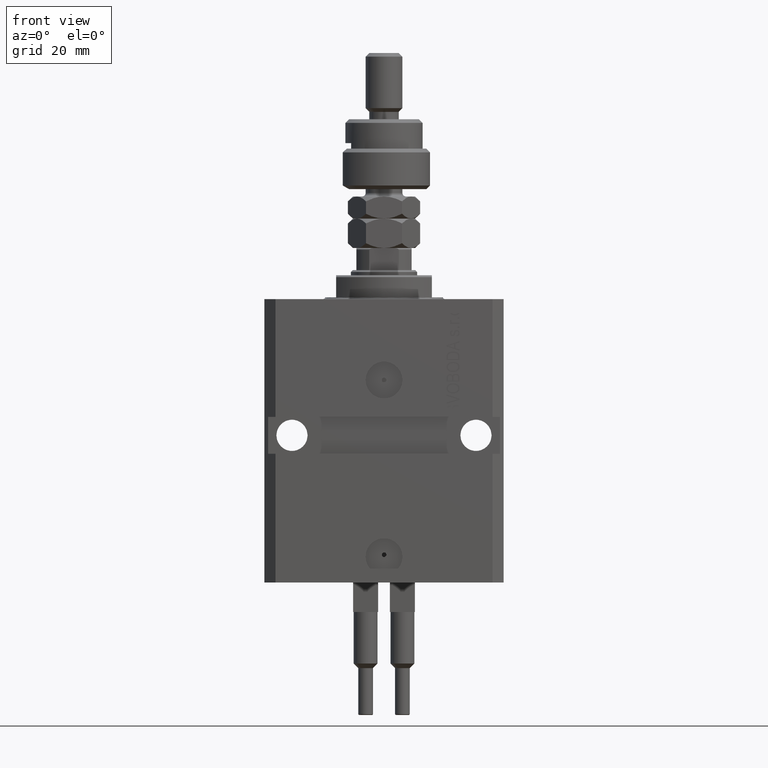
[diagram: clean part render]
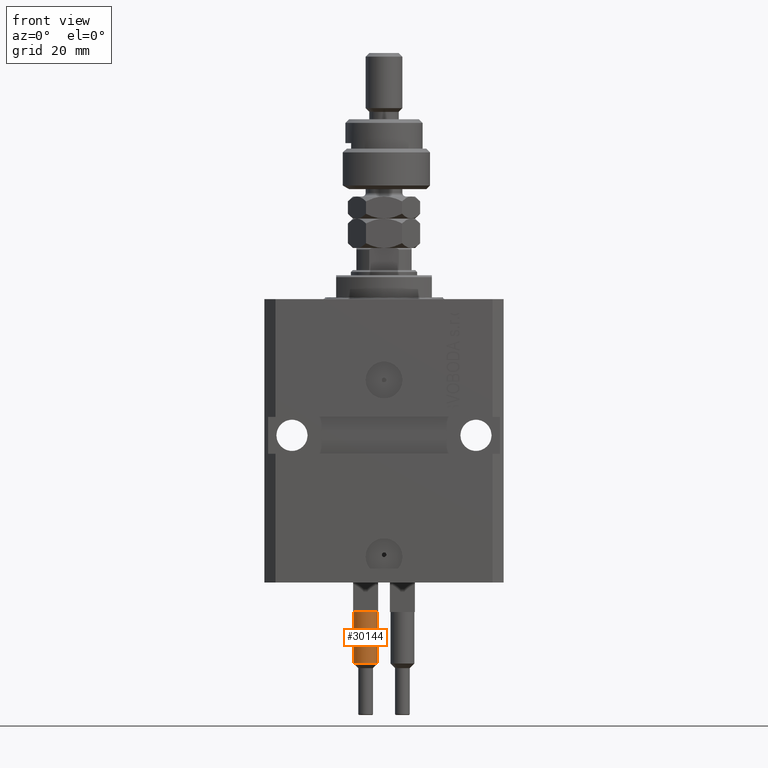
[diagram: same view with one face highlighted and labeled with its STEP entity id]
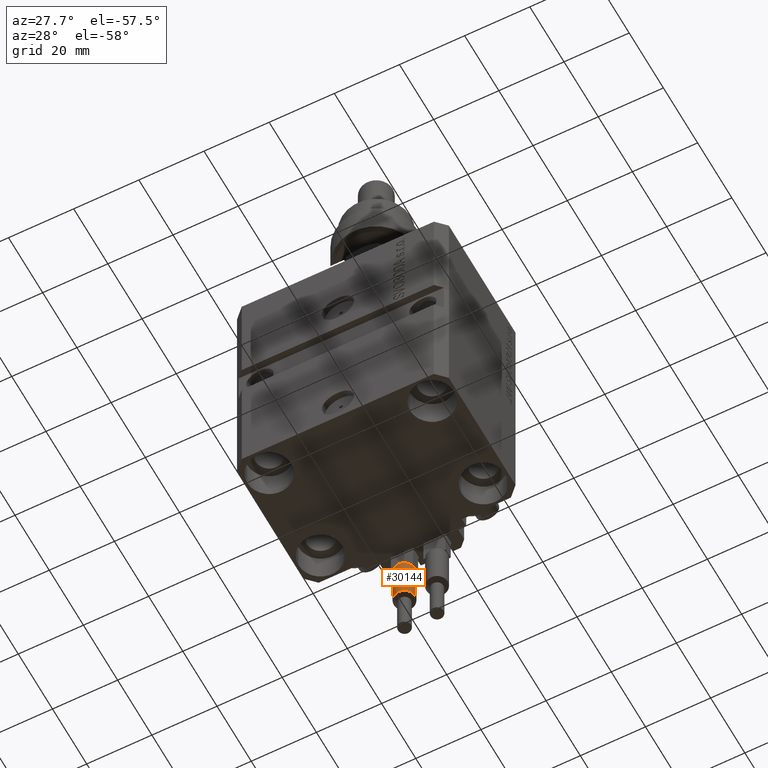
[diagram: same view with one face highlighted and labeled with its STEP entity id]
A machine part, front view. The second image highlights one B-rep face of the part: STEP entity #30144.
A second angle (auxiliary view) of the same face is appended — the face is thin or edge-on in the first view.
In plain terms, the highlighted cylindrical surface (edge-blend (fillet) strip) has radius 3.25 mm, axis along (0, 0, 1).
Its self-contained STEP definition (entity closure, byte-faithful):
#153 = VERTEX_POINT ( 'NONE', #41149 ) ;
#504 = DIRECTION ( 'NONE',  ( 0.000000000000000000, 0.000000000000000000, 1.000000000000000000 ) ) ;
#801 = CIRCLE ( 'NONE', #13122, 3.250000000000000444 ) ;
#1519 = ORIENTED_EDGE ( 'NONE', *, *, #21157, .T. ) ;
#2864 = LINE ( 'NONE', #22393, #3114 ) ;
#3007 = CARTESIAN_POINT ( 'NONE',  ( 3.250000000000000444, 3.980102097228898231E-16, 53.99999999999998579 ) ) ;
#3114 = VECTOR ( 'NONE', #10324, 1000.000000000000000 ) ;
#3421 = LINE ( 'NONE', #20288, #27524 ) ;
#3444 = ORIENTED_EDGE ( 'NONE', *, *, #9943, .T. ) ;
#4852 = CARTESIAN_POINT ( 'NONE',  ( 0.000000000000000000, 0.000000000000000000, 40.00000000000000000 ) ) ;
#7608 = EDGE_CURVE ( 'NONE', #153, #14983, #2864, .T. ) ;
#9463 = DIRECTION ( 'NONE',  ( 0.000000000000000000, 0.000000000000000000, 1.000000000000000000 ) ) ;
#9943 = EDGE_CURVE ( 'NONE', #47606, #19009, #48328, .T. ) ;
#10324 = DIRECTION ( 'NONE',  ( -0.000000000000000000, -0.000000000000000000, -1.000000000000000000 ) ) ;
#13122 = AXIS2_PLACEMENT_3D ( 'NONE', #4852, #504, #16690 ) ;
#13330 = AXIS2_PLACEMENT_3D ( 'NONE', #18126, #45608, #37136 ) ;
#14804 = CARTESIAN_POINT ( 'NONE',  ( -3.250000000000000444, 0.000000000000000000, 40.00000000000000000 ) ) ;
#14983 = VERTEX_POINT ( 'NONE', #14804 ) ;
#15037 = EDGE_CURVE ( 'NONE', #26687, #153, #16387, .T. ) ;
#15721 = CARTESIAN_POINT ( 'NONE',  ( 3.250000000000000444, 3.980102097228898231E-16, 40.00000000000000000 ) ) ;
#16387 = CIRCLE ( 'NONE', #41833, 3.250000000000000444 ) ;
#16451 = CARTESIAN_POINT ( 'NONE',  ( 0.000000000000000000, 0.000000000000000000, 40.00000000000000000 ) ) ;
#16577 = DIRECTION ( 'NONE',  ( 0.000000000000000000, 0.000000000000000000, -1.000000000000000000 ) ) ;
#16690 = DIRECTION ( 'NONE',  ( 1.000000000000000000, 0.000000000000000000, 0.000000000000000000 ) ) ;
#18126 = CARTESIAN_POINT ( 'NONE',  ( 0.000000000000000000, 0.000000000000000000, 56.00000000000000000 ) ) ;
#19009 = VERTEX_POINT ( 'NONE', #15721 ) ;
#20288 = CARTESIAN_POINT ( 'NONE',  ( 3.250000000000000444, 3.980102097228898231E-16, 56.00000000000000000 ) ) ;
#21157 = EDGE_CURVE ( 'NONE', #14983, #36182, #801, .T. ) ;
#21303 = DIRECTION ( 'NONE',  ( 0.000000000000000000, 0.000000000000000000, 1.000000000000000000 ) ) ;
#22393 = CARTESIAN_POINT ( 'NONE',  ( -3.250000000000000444, 0.000000000000000000, 56.00000000000000000 ) ) ;
#22961 = ORIENTED_EDGE ( 'NONE', *, *, #48626, .T. ) ;
#24890 = CARTESIAN_POINT ( 'NONE',  ( 2.883140648667699146, -1.500000000000000000, 40.00000000000000000 ) ) ;
#25132 = AXIS2_PLACEMENT_3D ( 'NONE', #16451, #21303, #28500 ) ;
#25575 = CYLINDRICAL_SURFACE ( 'NONE', #13330, 3.250000000000000444 ) ;
#26687 = VERTEX_POINT ( 'NONE', #3007 ) ;
#26776 = ORIENTED_EDGE ( 'NONE', *, *, #15037, .T. ) ;
#27524 = VECTOR ( 'NONE', #46837, 1000.000000000000000 ) ;
#28500 = DIRECTION ( 'NONE',  ( 1.000000000000000000, 0.000000000000000000, 0.000000000000000000 ) ) ;
#30144 = ADVANCED_FACE ( 'NONE', ( #33025 ), #25575, .T. ) ;
#31127 = DIRECTION ( 'NONE',  ( 1.000000000000000000, 0.000000000000000000, 0.000000000000000000 ) ) ;
#33025 = FACE_OUTER_BOUND ( 'NONE', #50691, .T. ) ;
#33543 = AXIS2_PLACEMENT_3D ( 'NONE', #46565, #9463, #31127 ) ;
#36077 = CARTESIAN_POINT ( 'NONE',  ( 0.000000000000000000, 0.000000000000000000, 53.99999999999998579 ) ) ;
#36182 = VERTEX_POINT ( 'NONE', #50771 ) ;
#37136 = DIRECTION ( 'NONE',  ( -1.000000000000000000, 0.000000000000000000, 0.000000000000000000 ) ) ;
#39885 = ORIENTED_EDGE ( 'NONE', *, *, #46508, .F. ) ;
#40441 = DIRECTION ( 'NONE',  ( 1.000000000000000000, 0.000000000000000000, 0.000000000000000000 ) ) ;
#41149 = CARTESIAN_POINT ( 'NONE',  ( -3.250000000000000444, 0.000000000000000000, 53.99999999999998579 ) ) ;
#41833 = AXIS2_PLACEMENT_3D ( 'NONE', #36077, #16577, #40441 ) ;
#43188 = CIRCLE ( 'NONE', #25132, 3.250000000000000444 ) ;
#45608 = DIRECTION ( 'NONE',  ( -0.000000000000000000, -0.000000000000000000, -1.000000000000000000 ) ) ;
#46508 = EDGE_CURVE ( 'NONE', #26687, #19009, #3421, .T. ) ;
#46565 = CARTESIAN_POINT ( 'NONE',  ( 0.000000000000000000, 0.000000000000000000, 40.00000000000000000 ) ) ;
#46837 = DIRECTION ( 'NONE',  ( -0.000000000000000000, -0.000000000000000000, -1.000000000000000000 ) ) ;
#47428 = ORIENTED_EDGE ( 'NONE', *, *, #7608, .T. ) ;
#47606 = VERTEX_POINT ( 'NONE', #24890 ) ;
#48328 = CIRCLE ( 'NONE', #33543, 3.250000000000000444 ) ;
#48626 = EDGE_CURVE ( 'NONE', #36182, #47606, #43188, .T. ) ;
#50691 = EDGE_LOOP ( 'NONE', ( #39885, #26776, #47428, #1519, #22961, #3444 ) ) ;
#50771 = CARTESIAN_POINT ( 'NONE',  ( -2.883140648667699146, -1.500000000000000000, 40.00000000000000000 ) ) ;